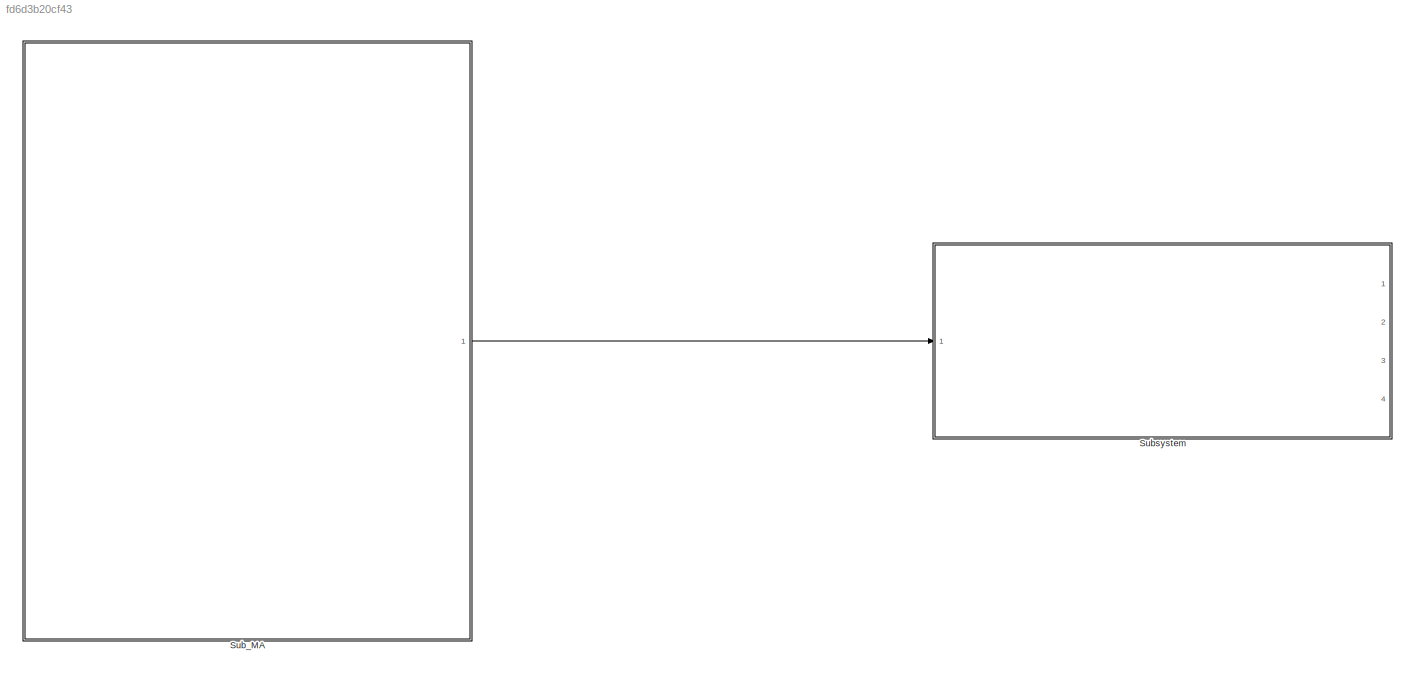
MODEL slx_fd6d3b20cf43
KIND model
CONFIG AbsTol = auto
CONFIG EnableMultiTasking = off
CONFIG FixedStep = 0.001
CONFIG InitFcn = , if any(exist('rtifpga_mdlclblib', 'file') ~= 0), rtifpga_mdlclblib('Init', bdroot); end,\n
CONFIG MaxStep = auto
CONFIG MinStep = auto
CONFIG PostLoadFcn = , if any(exist('dsrtsu_mdlpostloadfcn', 'file') == [2, 3, 6]), try dsrtsu_mdlpostloadfcn('Execute', bdroot); catch fprintf('Error in PostLoadFcn (dsrtsu_mdlpostloadfcn) for model "%s":\n %s\n', bdroot, lasterr); end, end, \n
CONFIG RelTol = 1e-3
CONFIG SampleTimeConstraint = Unconstrained
CONFIG SolverName = ode1
CONFIG StartTime = 0.0
CONFIG StopTime = Inf
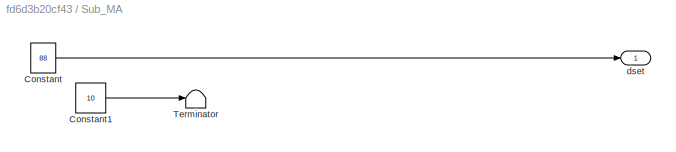
BLOCK [SubSystem] Sub_MA
  Ports = [0, 1]
  RequestExecContextInheritance = off
BLOCK [Constant] Sub_MA/Constant
  Value = 88
BLOCK [Constant] Sub_MA/Constant1
  Value = 10
BLOCK [Terminator] Sub_MA/Terminator
BLOCK [Outport] Sub_MA/dset
BLOCK [SubSystem] Subsystem
  Ports = [1, 4]
  ReferencedSubsystem = core
  RequestExecContextInheritance = off
LINE Sub_MA/Constant1:1 -> Sub_MA/Terminator:1
LINE Sub_MA/Constant:1 -> Sub_MA/dset:1
LINE Sub_MA:1 -> Subsystem:1
